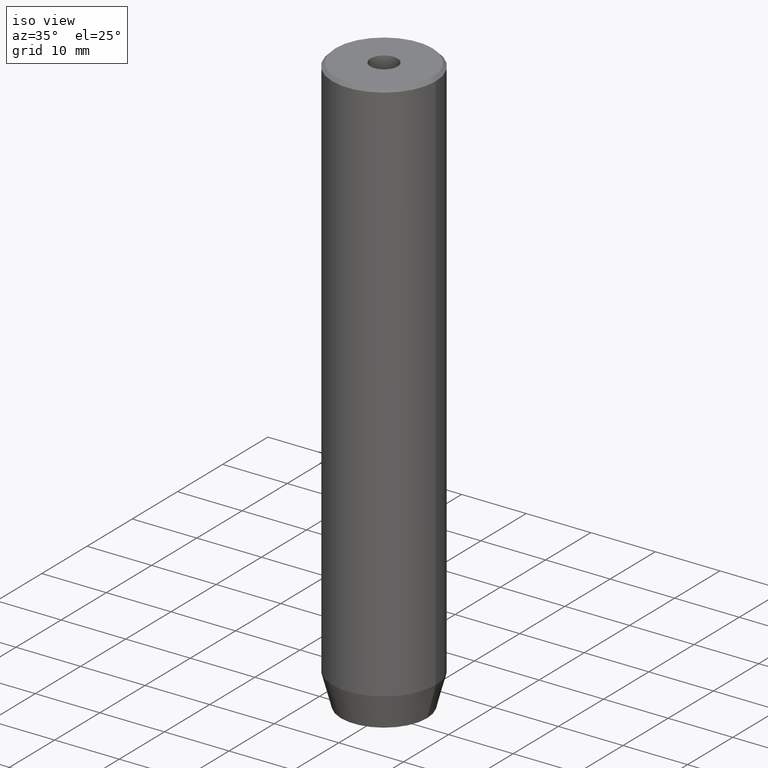
[diagram: clean part render]
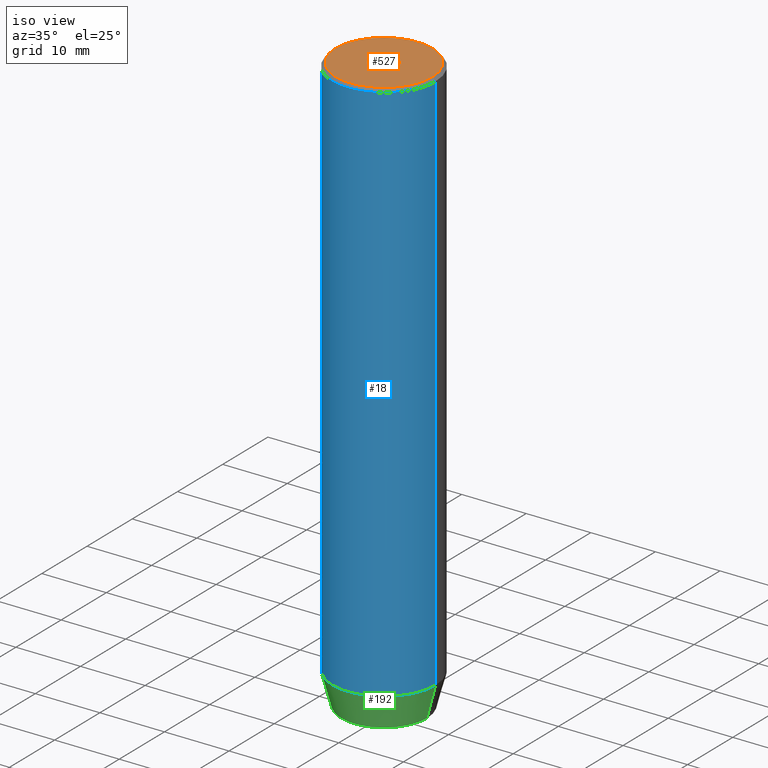
[diagram: same view with three faces highlighted in distinct colors, each labeled with its STEP entity id]
A machine part, iso view with three faces highlighted in distinct colors.
Their STEP definitions:

[orange] entity #527 — the highlighted planar face has unit normal (0, -0, 1).
#3 = VERTEX_POINT ( 'NONE', #265 ) ;
#7 = DIRECTION ( 'NONE',  ( -0.000000000000000000, -0.000000000000000000, 1.000000000000000000 ) ) ;
#31 = DIRECTION ( 'NONE',  ( -0.000000000000000000, -0.000000000000000000, 1.000000000000000000 ) ) ;
#38 = CARTESIAN_POINT ( 'NONE',  ( 0.000000000000000000, 0.000000000000000000, 0.000000000000000000 ) ) ;
#43 = ORIENTED_EDGE ( 'NONE', *, *, #126, .T. ) ;
#69 = EDGE_CURVE ( 'NONE', #307, #3, #186, .T. ) ;
#74 = FACE_BOUND ( 'NONE', #76, .T. ) ;
#76 = EDGE_LOOP ( 'NONE', ( #579, #484 ) ) ;
#79 = CIRCLE ( 'NONE', #154, 7.499999999999978684 ) ;
#95 = AXIS2_PLACEMENT_3D ( 'NONE', #277, #355, #132 ) ;
#126 = EDGE_CURVE ( 'NONE', #213, #380, #79, .T. ) ;
#132 = DIRECTION ( 'NONE',  ( 1.000000000000000000, 0.000000000000000000, 0.000000000000000000 ) ) ;
#148 = CIRCLE ( 'NONE', #179, 2.099999999999998757 ) ;
#153 = EDGE_LOOP ( 'NONE', ( #467, #43 ) ) ;
#154 = AXIS2_PLACEMENT_3D ( 'NONE', #225, #314, #184 ) ;
#179 = AXIS2_PLACEMENT_3D ( 'NONE', #441, #31, #398 ) ;
#184 = DIRECTION ( 'NONE',  ( 1.000000000000000000, 0.000000000000000000, 0.000000000000000000 ) ) ;
#186 = CIRCLE ( 'NONE', #254, 2.099999999999998757 ) ;
#187 = AXIS2_PLACEMENT_3D ( 'NONE', #38, #304, #259 ) ;
#213 = VERTEX_POINT ( 'NONE', #390 ) ;
#225 = CARTESIAN_POINT ( 'NONE',  ( 0.000000000000000000, 0.000000000000000000, 0.000000000000000000 ) ) ;
#254 = AXIS2_PLACEMENT_3D ( 'NONE', #582, #7, #273 ) ;
#259 = DIRECTION ( 'NONE',  ( 1.000000000000000000, 0.000000000000000000, 0.000000000000000000 ) ) ;
#265 = CARTESIAN_POINT ( 'NONE',  ( 2.099999999999998757, 0.000000000000000000, -1.990051048614449116E-16 ) ) ;
#273 = DIRECTION ( 'NONE',  ( 1.000000000000000000, 0.000000000000000000, 0.000000000000000000 ) ) ;
#277 = CARTESIAN_POINT ( 'NONE',  ( 0.000000000000000000, 0.000000000000000000, 0.000000000000000000 ) ) ;
#304 = DIRECTION ( 'NONE',  ( -0.000000000000000000, -0.000000000000000000, 1.000000000000000000 ) ) ;
#307 = VERTEX_POINT ( 'NONE', #565 ) ;
#308 = EDGE_CURVE ( 'NONE', #3, #307, #148, .T. ) ;
#314 = DIRECTION ( 'NONE',  ( -0.000000000000000000, -0.000000000000000000, 1.000000000000000000 ) ) ;
#355 = DIRECTION ( 'NONE',  ( 0.000000000000000000, -0.000000000000000000, 1.000000000000000000 ) ) ;
#380 = VERTEX_POINT ( 'NONE', #460 ) ;
#390 = CARTESIAN_POINT ( 'NONE',  ( 7.499999999999978684, 9.491012693391973982E-16, 0.000000000000000000 ) ) ;
#398 = DIRECTION ( 'NONE',  ( 1.000000000000000000, 0.000000000000000000, 0.000000000000000000 ) ) ;
#441 = CARTESIAN_POINT ( 'NONE',  ( 0.000000000000000000, 0.000000000000000000, -1.990051048614449116E-16 ) ) ;
#460 = CARTESIAN_POINT ( 'NONE',  ( -7.499999999999978684, 0.000000000000000000, 0.000000000000000000 ) ) ;
#467 = ORIENTED_EDGE ( 'NONE', *, *, #469, .T. ) ;
#469 = EDGE_CURVE ( 'NONE', #380, #213, #550, .T. ) ;
#484 = ORIENTED_EDGE ( 'NONE', *, *, #69, .F. ) ;
#505 = PLANE ( 'NONE',  #95 ) ;
#527 = ADVANCED_FACE ( 'NONE', ( #74, #575 ), #505, .T. ) ;
#550 = CIRCLE ( 'NONE', #187, 7.499999999999978684 ) ;
#565 = CARTESIAN_POINT ( 'NONE',  ( -2.099999999999998757, 2.571758278209440478E-16, -1.990051048614449116E-16 ) ) ;
#575 = FACE_OUTER_BOUND ( 'NONE', #153, .T. ) ;
#579 = ORIENTED_EDGE ( 'NONE', *, *, #308, .F. ) ;
#582 = CARTESIAN_POINT ( 'NONE',  ( 0.000000000000000000, 0.000000000000000000, -1.990051048614449116E-16 ) ) ;

[blue] entity #18 — the highlighted cylindrical surface (partial cylindrical patch) has radius 8 mm, axis along (-0, -0, 1).
#2 = FACE_OUTER_BOUND ( 'NONE', #37, .T. ) ;
#4 = AXIS2_PLACEMENT_3D ( 'NONE', #175, #122, #26 ) ;
#14 = VERTEX_POINT ( 'NONE', #544 ) ;
#18 = ADVANCED_FACE ( 'NONE', ( #2 ), #178, .T. ) ;
#24 = ORIENTED_EDGE ( 'NONE', *, *, #518, .F. ) ;
#26 = DIRECTION ( 'NONE',  ( 1.000000000000000000, 0.000000000000000000, 0.000000000000000000 ) ) ;
#37 = EDGE_LOOP ( 'NONE', ( #24, #516, #100, #520 ) ) ;
#39 = CARTESIAN_POINT ( 'NONE',  ( 0.000000000000000000, 0.000000000000000000, -84.99999999999998579 ) ) ;
#77 = CARTESIAN_POINT ( 'NONE',  ( -8.000000000000000000, 9.797174393178825657E-16, 0.000000000000000000 ) ) ;
#92 = VERTEX_POINT ( 'NONE', #188 ) ;
#100 = ORIENTED_EDGE ( 'NONE', *, *, #189, .T. ) ;
#122 = DIRECTION ( 'NONE',  ( 0.000000000000000000, 0.000000000000000000, -1.000000000000000000 ) ) ;
#137 = AXIS2_PLACEMENT_3D ( 'NONE', #223, #503, #185 ) ;
#156 = DIRECTION ( 'NONE',  ( -0.000000000000000000, -0.000000000000000000, 1.000000000000000000 ) ) ;
#162 = CARTESIAN_POINT ( 'NONE',  ( -8.000000000000000000, 9.797174393178825657E-16, -84.99999999999998579 ) ) ;
#175 = CARTESIAN_POINT ( 'NONE',  ( 0.000000000000000000, 0.000000000000000000, -0.5000000000000213163 ) ) ;
#178 = CYLINDRICAL_SURFACE ( 'NONE', #137, 8.000000000000000000 ) ;
#185 = DIRECTION ( 'NONE',  ( 1.000000000000000000, 0.000000000000000000, 0.000000000000000000 ) ) ;
#188 = CARTESIAN_POINT ( 'NONE',  ( 8.000000000000000000, 0.000000000000000000, -84.99999999999998579 ) ) ;
#189 = EDGE_CURVE ( 'NONE', #92, #529, #375, .T. ) ;
#194 = VECTOR ( 'NONE', #156, 1000.000000000000000 ) ;
#202 = VERTEX_POINT ( 'NONE', #162 ) ;
#203 = CARTESIAN_POINT ( 'NONE',  ( 8.000000000000000000, 0.000000000000000000, 0.000000000000000000 ) ) ;
#223 = CARTESIAN_POINT ( 'NONE',  ( 0.000000000000000000, 0.000000000000000000, 0.000000000000000000 ) ) ;
#231 = CIRCLE ( 'NONE', #4, 8.000000000000000000 ) ;
#271 = CARTESIAN_POINT ( 'NONE',  ( 8.000000000000000000, 0.000000000000000000, -0.5000000000000213163 ) ) ;
#341 = EDGE_CURVE ( 'NONE', #202, #92, #385, .T. ) ;
#363 = DIRECTION ( 'NONE',  ( 1.000000000000000000, 0.000000000000000000, 0.000000000000000000 ) ) ;
#367 = DIRECTION ( 'NONE',  ( -0.000000000000000000, -0.000000000000000000, 1.000000000000000000 ) ) ;
#375 = LINE ( 'NONE', #203, #194 ) ;
#385 = CIRCLE ( 'NONE', #492, 8.000000000000000000 ) ;
#397 = LINE ( 'NONE', #77, #515 ) ;
#436 = EDGE_CURVE ( 'NONE', #529, #14, #231, .T. ) ;
#492 = AXIS2_PLACEMENT_3D ( 'NONE', #39, #367, #363 ) ;
#503 = DIRECTION ( 'NONE',  ( -0.000000000000000000, -0.000000000000000000, 1.000000000000000000 ) ) ;
#515 = VECTOR ( 'NONE', #531, 1000.000000000000000 ) ;
#516 = ORIENTED_EDGE ( 'NONE', *, *, #341, .T. ) ;
#518 = EDGE_CURVE ( 'NONE', #202, #14, #397, .T. ) ;
#520 = ORIENTED_EDGE ( 'NONE', *, *, #436, .T. ) ;
#529 = VERTEX_POINT ( 'NONE', #271 ) ;
#531 = DIRECTION ( 'NONE',  ( -0.000000000000000000, -0.000000000000000000, 1.000000000000000000 ) ) ;
#544 = CARTESIAN_POINT ( 'NONE',  ( -8.000000000000000000, 9.797174393178825657E-16, -0.5000000000000213163 ) ) ;

[green] entity #192 — the highlighted conical surface has half-angle 15 deg.
#9 = EDGE_CURVE ( 'NONE', #354, #73, #356, .T. ) ;
#39 = CARTESIAN_POINT ( 'NONE',  ( 0.000000000000000000, 0.000000000000000000, -84.99999999999998579 ) ) ;
#73 = VERTEX_POINT ( 'NONE', #131 ) ;
#82 = CARTESIAN_POINT ( 'NONE',  ( -6.660254037844381969, 8.976816591066591237E-16, -90.00000000000000000 ) ) ;
#85 = ORIENTED_EDGE ( 'NONE', *, *, #425, .F. ) ;
#92 = VERTEX_POINT ( 'NONE', #188 ) ;
#104 = DIRECTION ( 'NONE',  ( -0.000000000000000000, -0.000000000000000000, 1.000000000000000000 ) ) ;
#105 = ORIENTED_EDGE ( 'NONE', *, *, #563, .T. ) ;
#111 = FACE_OUTER_BOUND ( 'NONE', #328, .T. ) ;
#131 = CARTESIAN_POINT ( 'NONE',  ( 6.660254037844381969, 0.000000000000000000, -90.00000000000000000 ) ) ;
#141 = DIRECTION ( 'NONE',  ( 1.000000000000000000, 0.000000000000000000, 0.000000000000000000 ) ) ;
#162 = CARTESIAN_POINT ( 'NONE',  ( -8.000000000000000000, 9.797174393178825657E-16, -84.99999999999998579 ) ) ;
#177 = AXIS2_PLACEMENT_3D ( 'NONE', #552, #416, #141 ) ;
#188 = CARTESIAN_POINT ( 'NONE',  ( 8.000000000000000000, 0.000000000000000000, -84.99999999999998579 ) ) ;
#192 = ADVANCED_FACE ( 'NONE', ( #111 ), #561, .T. ) ;
#202 = VERTEX_POINT ( 'NONE', #162 ) ;
#234 = ORIENTED_EDGE ( 'NONE', *, *, #9, .T. ) ;
#249 = DIRECTION ( 'NONE',  ( 1.000000000000000000, 0.000000000000000000, 0.000000000000000000 ) ) ;
#287 = ORIENTED_EDGE ( 'NONE', *, *, #341, .F. ) ;
#319 = VECTOR ( 'NONE', #440, 1000.000000000000000 ) ;
#328 = EDGE_LOOP ( 'NONE', ( #85, #234, #105, #287 ) ) ;
#341 = EDGE_CURVE ( 'NONE', #202, #92, #385, .T. ) ;
#354 = VERTEX_POINT ( 'NONE', #82 ) ;
#356 = CIRCLE ( 'NONE', #177, 6.660254037844381969 ) ;
#363 = DIRECTION ( 'NONE',  ( 1.000000000000000000, 0.000000000000000000, 0.000000000000000000 ) ) ;
#364 = LINE ( 'NONE', #412, #500 ) ;
#367 = DIRECTION ( 'NONE',  ( -0.000000000000000000, -0.000000000000000000, 1.000000000000000000 ) ) ;
#378 = AXIS2_PLACEMENT_3D ( 'NONE', #483, #104, #249 ) ;
#385 = CIRCLE ( 'NONE', #492, 8.000000000000000000 ) ;
#400 = LINE ( 'NONE', #482, #319 ) ;
#412 = CARTESIAN_POINT ( 'NONE',  ( 8.000000000000000000, 0.000000000000000000, -84.99999999999998579 ) ) ;
#416 = DIRECTION ( 'NONE',  ( -0.000000000000000000, -0.000000000000000000, 1.000000000000000000 ) ) ;
#425 = EDGE_CURVE ( 'NONE', #354, #202, #400, .T. ) ;
#440 = DIRECTION ( 'NONE',  ( -0.2588190451025213501, 3.169619151431772337E-17, 0.9659258262890680902 ) ) ;
#482 = CARTESIAN_POINT ( 'NONE',  ( -8.000000000000000000, 9.797174393178825657E-16, -84.99999999999998579 ) ) ;
#483 = CARTESIAN_POINT ( 'NONE',  ( 0.000000000000000000, 0.000000000000000000, -84.99999999999998579 ) ) ;
#492 = AXIS2_PLACEMENT_3D ( 'NONE', #39, #367, #363 ) ;
#500 = VECTOR ( 'NONE', #585, 1000.000000000000000 ) ;
#552 = CARTESIAN_POINT ( 'NONE',  ( 0.000000000000000000, 0.000000000000000000, -90.00000000000000000 ) ) ;
#561 = CONICAL_SURFACE ( 'NONE', #378, 8.000000000000000000, 0.2617993877991500740 ) ;
#563 = EDGE_CURVE ( 'NONE', #73, #92, #364, .T. ) ;
#585 = DIRECTION ( 'NONE',  ( 0.2588190451025213501, 0.000000000000000000, 0.9659258262890680902 ) ) ;